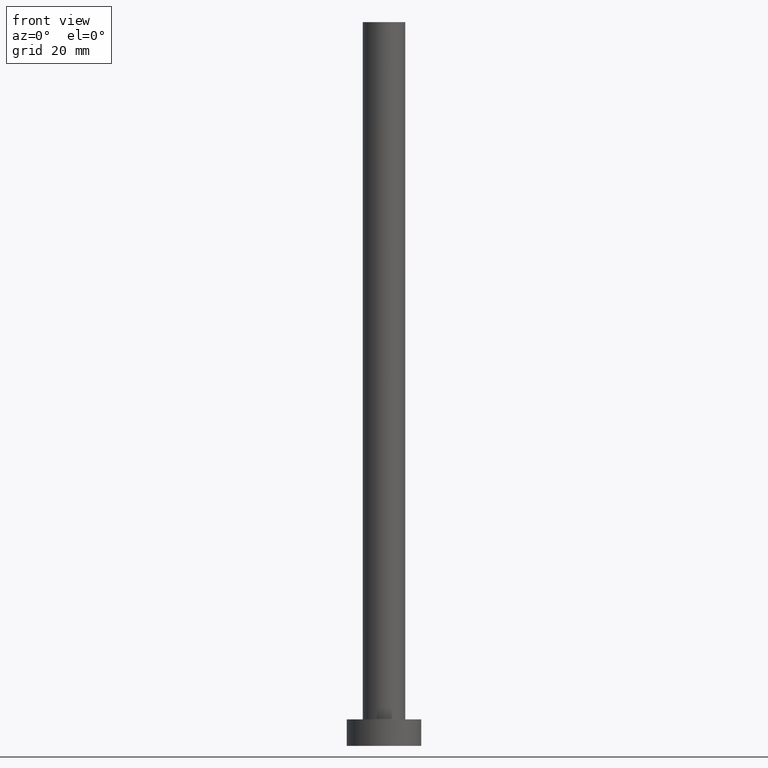
[diagram: clean part render]
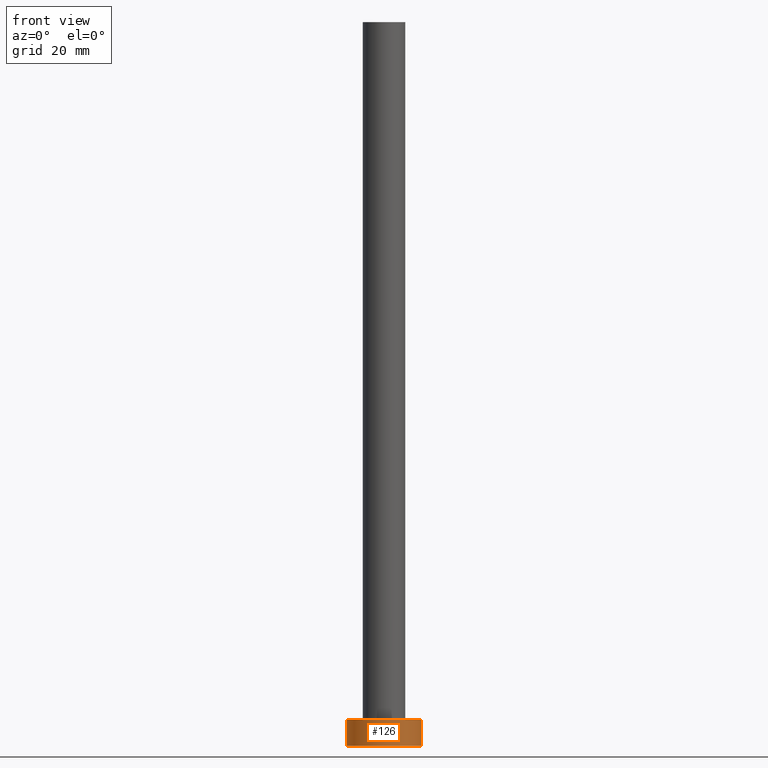
[diagram: same view with one face highlighted and labeled with its STEP entity id]
A machine part, front view. The second image highlights one B-rep face of the part: STEP entity #126.
In plain terms, the highlighted cylindrical surface (partial cylindrical patch) has radius 7 mm, axis along (-0, -0, -1).
Its self-contained STEP definition (entity closure, byte-faithful):
#5 = DIRECTION ( 'NONE',  ( 1.000000000000000000, 0.000000000000000000, 0.000000000000000000 ) ) ;
#8 = AXIS2_PLACEMENT_3D ( 'NONE', #203, #163, #200 ) ;
#10 = CARTESIAN_POINT ( 'NONE',  ( 7.000000000000000000, 8.572527594031473190E-16, 5.000000000000000000 ) ) ;
#16 = EDGE_LOOP ( 'NONE', ( #104, #226, #131, #236 ) ) ;
#28 = CYLINDRICAL_SURFACE ( 'NONE', #191, 7.000000000000000000 ) ;
#31 = VECTOR ( 'NONE', #190, 1000.000000000000000 ) ;
#36 = EDGE_CURVE ( 'NONE', #137, #42, #213, .T. ) ;
#39 = VERTEX_POINT ( 'NONE', #174 ) ;
#42 = VERTEX_POINT ( 'NONE', #119 ) ;
#58 = CIRCLE ( 'NONE', #8, 7.000000000000000000 ) ;
#72 = VECTOR ( 'NONE', #195, 1000.000000000000000 ) ;
#104 = ORIENTED_EDGE ( 'NONE', *, *, #36, .F. ) ;
#105 = FACE_OUTER_BOUND ( 'NONE', #16, .T. ) ;
#107 = EDGE_CURVE ( 'NONE', #122, #39, #158, .T. ) ;
#109 = CIRCLE ( 'NONE', #177, 7.000000000000000000 ) ;
#119 = CARTESIAN_POINT ( 'NONE',  ( 7.000000000000000000, 8.572527594031473190E-16, 0.000000000000000000 ) ) ;
#122 = VERTEX_POINT ( 'NONE', #214 ) ;
#126 = ADVANCED_FACE ( 'NONE', ( #105 ), #28, .T. ) ;
#131 = ORIENTED_EDGE ( 'NONE', *, *, #107, .T. ) ;
#133 = CARTESIAN_POINT ( 'NONE',  ( -7.000000000000000000, 0.000000000000000000, 5.000000000000000000 ) ) ;
#134 = CARTESIAN_POINT ( 'NONE',  ( 7.000000000000000000, 8.572527594031473190E-16, 5.000000000000000000 ) ) ;
#137 = VERTEX_POINT ( 'NONE', #10 ) ;
#158 = LINE ( 'NONE', #133, #31 ) ;
#163 = DIRECTION ( 'NONE',  ( 0.000000000000000000, 0.000000000000000000, 1.000000000000000000 ) ) ;
#164 = DIRECTION ( 'NONE',  ( 0.000000000000000000, 0.000000000000000000, 1.000000000000000000 ) ) ;
#174 = CARTESIAN_POINT ( 'NONE',  ( -7.000000000000000000, 0.000000000000000000, 0.000000000000000000 ) ) ;
#177 = AXIS2_PLACEMENT_3D ( 'NONE', #179, #164, #5 ) ;
#179 = CARTESIAN_POINT ( 'NONE',  ( 0.000000000000000000, 0.000000000000000000, 0.000000000000000000 ) ) ;
#182 = CARTESIAN_POINT ( 'NONE',  ( 0.000000000000000000, 0.000000000000000000, 5.000000000000000000 ) ) ;
#185 = DIRECTION ( 'NONE',  ( -1.000000000000000000, 0.000000000000000000, 0.000000000000000000 ) ) ;
#190 = DIRECTION ( 'NONE',  ( -0.000000000000000000, -0.000000000000000000, -1.000000000000000000 ) ) ;
#191 = AXIS2_PLACEMENT_3D ( 'NONE', #182, #244, #185 ) ;
#195 = DIRECTION ( 'NONE',  ( -0.000000000000000000, -0.000000000000000000, -1.000000000000000000 ) ) ;
#200 = DIRECTION ( 'NONE',  ( 1.000000000000000000, 0.000000000000000000, 0.000000000000000000 ) ) ;
#203 = CARTESIAN_POINT ( 'NONE',  ( 0.000000000000000000, 0.000000000000000000, 5.000000000000000000 ) ) ;
#213 = LINE ( 'NONE', #134, #72 ) ;
#214 = CARTESIAN_POINT ( 'NONE',  ( -7.000000000000000000, 0.000000000000000000, 5.000000000000000000 ) ) ;
#216 = EDGE_CURVE ( 'NONE', #122, #137, #58, .T. ) ;
#224 = EDGE_CURVE ( 'NONE', #39, #42, #109, .T. ) ;
#226 = ORIENTED_EDGE ( 'NONE', *, *, #216, .F. ) ;
#236 = ORIENTED_EDGE ( 'NONE', *, *, #224, .T. ) ;
#244 = DIRECTION ( 'NONE',  ( -0.000000000000000000, -0.000000000000000000, -1.000000000000000000 ) ) ;